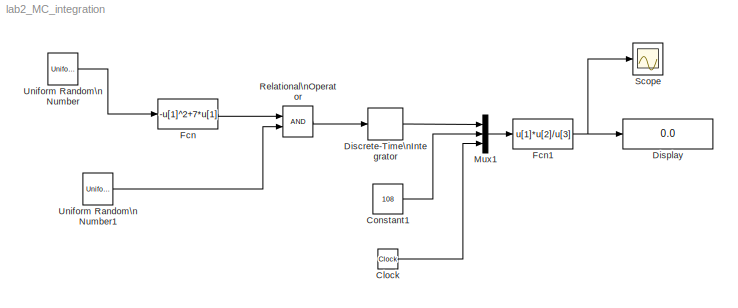
MODEL lab2_MC_integration
KIND model
BLOCK [Clock] Clock
  SID = 1
BLOCK [Constant] Constant1
  SID = 2
  Value = 108
BLOCK [DiscreteIntegrator] Discrete-Time\nIntegrator
  ICPrevOutput = DiscIntNeverNeededParam
  ICPrevScaledInput = DiscIntNeverNeededParam
  OutDataTypeStr = double
  Ports = [1, 1]
  SID = 3
BLOCK [Display] Display
  Decimation = 1
  Ports = [1]
  SID = 4
BLOCK [Fcn] Fcn
  Expr = -u[1]^2+7*u[1]
  SID = 5
BLOCK [Fcn] Fcn1
  Expr = u[1]*u[2]/u[3]
  SID = 6
BLOCK [Mux] Mux1
  DisplayOption = bar
  Inputs = 3
  Ports = [3, 1]
  SID = 7
BLOCK [RelationalOperator] Relational\nOperator
  InputSameDT = off
  OutDataTypeStr = boolean
  Ports = [2, 1]
  SID = 8
BLOCK [Scope] Scope
  NumInputPorts = 1
  Ports = [1]
  SID = 9
  ScopeSpecificationString = C++SS(StrPVP('Location','[1284, 656, 1894, 955]'),StrPVP('Open','off'),MxPVP('AxesTitles',53,'struct(''axes1'',''%<SignalLabel>'')'),StrPVP('YMin','0'),StrPVP('YMax','105'),StrPVP('DataFormat','StructureWithTime'),StrPVP('BlockParamSampleTime','0'),StrPVP('LimitDataPoints','on'),StrPVP('Decimation','1'),StrPVP('BlockParamSampleInput','off'))
BLOCK [UniformRandomNumber] Uniform Random\nNumber
  Maximum = 10
  Minimum = -6
  SID = 10
  SampleTime = 0
  Seed = 5
BLOCK [UniformRandomNumber] Uniform Random\nNumber1
  Maximum = 8
  Minimum = 0
  SID = 11
  SampleTime = 0
LINE Clock:1 -> Mux1:3
LINE Constant1:1 -> Mux1:2
LINE Discrete-Time\nIntegrator:1 -> Mux1:1
NET Fcn1:1 -> Display:1, Scope:1
LINE Fcn:1 -> Relational\nOperator:1
LINE Mux1:1 -> Fcn1:1
LINE Relational\nOperator:1 -> Discrete-Time\nIntegrator:1
LINE Uniform Random\nNumber1:1 -> Relational\nOperator:2
LINE Uniform Random\nNumber:1 -> Fcn:1
note: NET lines group one-source signal fan-out (src -> all destinations, sorted); 1:1 wires keep LINE
